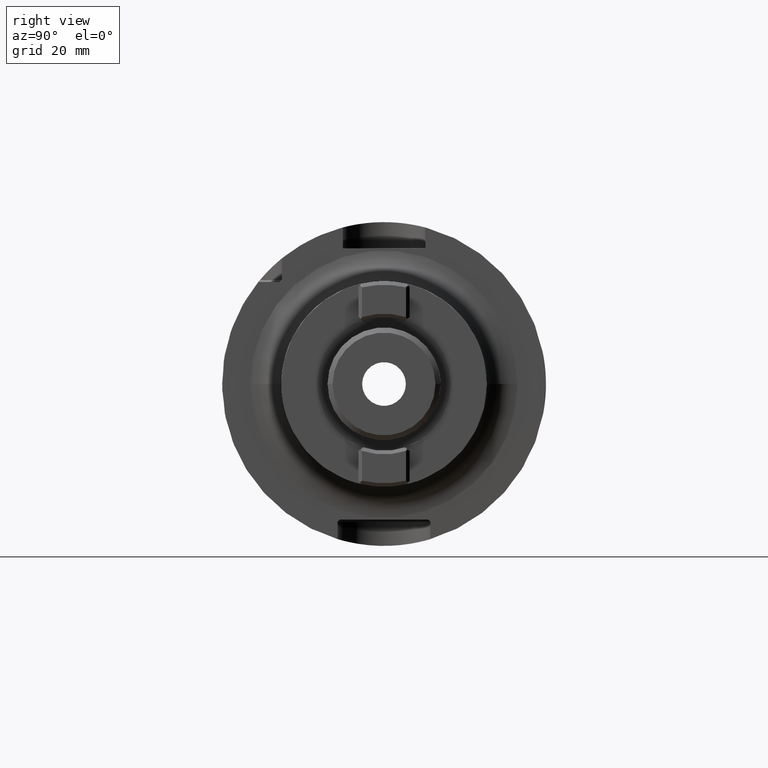
[diagram: clean part render]
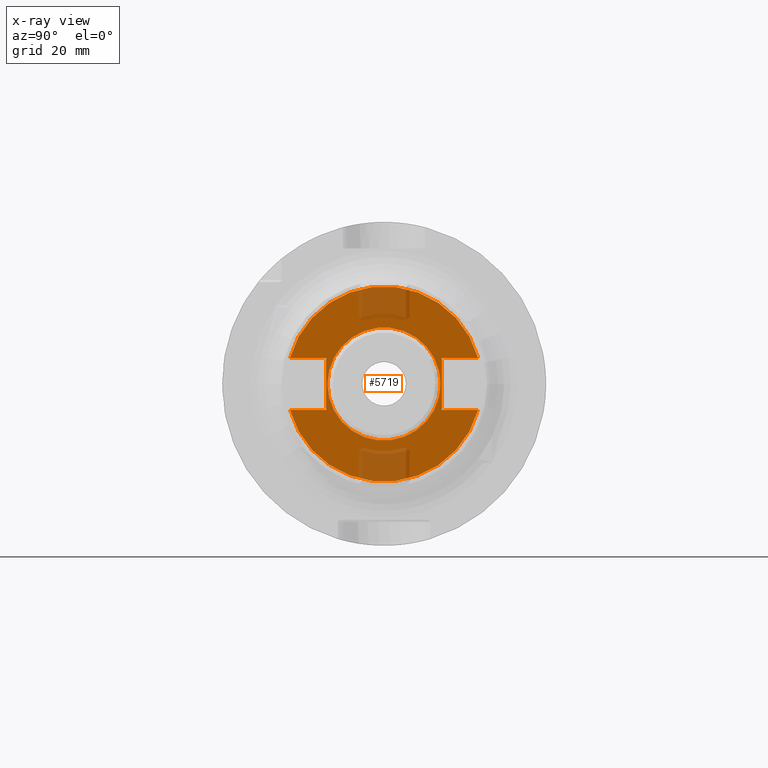
[diagram: x-ray — body ghosted, one internal face saturated and labeled with its STEP entity id]
A machine part, right view, then the same camera in x-ray: the body is ghosted and one INTERNAL B-rep face — a face not visible from any outside direction — is saturated and labeled: STEP entity #5719.
In plain terms, the highlighted planar face has unit normal (1, 0, 0).
Its self-contained STEP definition (entity closure, byte-faithful):
#2061=CARTESIAN_POINT('',(4.8E1,0.E0,0.E0));
#2062=DIRECTION('',(1.E0,0.E0,0.E0));
#2063=DIRECTION('',(0.E0,9.640310968421E-1,2.657894736842E-1));
#2064=AXIS2_PLACEMENT_3D('',#2061,#2062,#2063);
#2078=CARTESIAN_POINT('',(4.8E1,0.E0,0.E0));
#2079=DIRECTION('',(1.E0,0.E0,0.E0));
#2080=DIRECTION('',(0.E0,-9.640310968421E-1,-2.657894736842E-1));
#2081=AXIS2_PLACEMENT_3D('',#2078,#2079,#2080);
#2099=CARTESIAN_POINT('',(4.8E1,0.E0,0.E0));
#2100=DIRECTION('',(1.E0,0.E0,0.E0));
#2101=DIRECTION('',(0.E0,1.E0,0.E0));
#2102=AXIS2_PLACEMENT_3D('',#2099,#2100,#2101);
#2104=CARTESIAN_POINT('',(4.8E1,0.E0,0.E0));
#2105=DIRECTION('',(-1.E0,0.E0,0.E0));
#2106=DIRECTION('',(0.E0,1.E0,0.E0));
#2107=AXIS2_PLACEMENT_3D('',#2104,#2105,#2106);
#2109=DIRECTION('',(0.E0,0.E0,-1.E0));
#2110=VECTOR('',#2109,1.01E1);
#2111=CARTESIAN_POINT('',(4.8E1,-1.125E1,5.05E0));
#2112=LINE('',#2111,#2110);
#2113=DIRECTION('',(0.E0,1.E0,0.E0));
#2114=VECTOR('',#2113,7.066590840001E0);
#2115=CARTESIAN_POINT('',(4.8E1,-1.831659084E1,5.05E0));
#2116=LINE('',#2115,#2114);
#2117=DIRECTION('',(0.E0,-1.E0,0.E0));
#2118=VECTOR('',#2117,7.066590840001E0);
#2119=CARTESIAN_POINT('',(4.8E1,1.831659084E1,5.05E0));
#2120=LINE('',#2119,#2118);
#2121=DIRECTION('',(0.E0,0.E0,-1.E0));
#2122=VECTOR('',#2121,1.01E1);
#2123=CARTESIAN_POINT('',(4.8E1,1.125E1,5.05E0));
#2124=LINE('',#2123,#2122);
#2125=DIRECTION('',(0.E0,-1.E0,0.E0));
#2126=VECTOR('',#2125,7.066590840001E0);
#2127=CARTESIAN_POINT('',(4.8E1,1.831659084E1,-5.05E0));
#2128=LINE('',#2127,#2126);
#2129=DIRECTION('',(0.E0,1.E0,0.E0));
#2130=VECTOR('',#2129,7.066590840001E0);
#2131=CARTESIAN_POINT('',(4.8E1,-1.831659084E1,-5.05E0));
#2132=LINE('',#2131,#2130);
#3374=CARTESIAN_POINT('',(4.8E1,1.1E1,0.E0));
#3375=CARTESIAN_POINT('',(4.8E1,-1.1E1,0.E0));
#3376=VERTEX_POINT('',#3374);
#3377=VERTEX_POINT('',#3375);
#3406=CARTESIAN_POINT('',(4.8E1,1.125E1,5.05E0));
#3407=CARTESIAN_POINT('',(4.8E1,1.125E1,-5.05E0));
#3408=VERTEX_POINT('',#3406);
#3409=VERTEX_POINT('',#3407);
#3410=CARTESIAN_POINT('',(4.8E1,1.831659084E1,5.05E0));
#3411=VERTEX_POINT('',#3410);
#3412=CARTESIAN_POINT('',(4.8E1,1.831659084E1,-5.05E0));
#3413=VERTEX_POINT('',#3412);
#3425=CARTESIAN_POINT('',(4.8E1,-1.125E1,5.05E0));
#3426=VERTEX_POINT('',#3425);
#3427=CARTESIAN_POINT('',(4.8E1,-1.125E1,-5.05E0));
#3428=VERTEX_POINT('',#3427);
#3433=CARTESIAN_POINT('',(4.8E1,-1.831659084E1,5.05E0));
#3434=VERTEX_POINT('',#3433);
#3435=CARTESIAN_POINT('',(4.8E1,-1.831659084E1,-5.05E0));
#3436=VERTEX_POINT('',#3435);
#5696=CARTESIAN_POINT('',(4.8E1,0.E0,0.E0));
#5697=DIRECTION('',(1.E0,0.E0,0.E0));
#5698=DIRECTION('',(0.E0,-1.E0,0.E0));
#5699=AXIS2_PLACEMENT_3D('',#5696,#5697,#5698);
#5700=PLANE('',#5699);
#5701=ORIENTED_EDGE('',*,*,#5629,.F.);
#5702=ORIENTED_EDGE('',*,*,#5646,.F.);
#5703=ORIENTED_EDGE('',*,*,#5660,.F.);
#5704=ORIENTED_EDGE('',*,*,#5685,.T.);
#5706=ORIENTED_EDGE('',*,*,#5705,.T.);
#5708=ORIENTED_EDGE('',*,*,#5707,.F.);
#5709=ORIENTED_EDGE('',*,*,#5671,.F.);
#5710=ORIENTED_EDGE('',*,*,#5612,.T.);
#5711=EDGE_LOOP('',(#5701,#5702,#5703,#5704,#5706,#5708,#5709,#5710));
#5712=FACE_OUTER_BOUND('',#5711,.F.);
#5714=ORIENTED_EDGE('',*,*,#5713,.T.);
#5716=ORIENTED_EDGE('',*,*,#5715,.F.);
#5717=EDGE_LOOP('',(#5714,#5716));
#5718=FACE_BOUND('',#5717,.F.);
#5719=ADVANCED_FACE('',(#5712,#5718),#5700,.T.);
#2065=CIRCLE('',#2064,1.9E1);
#2082=CIRCLE('',#2081,1.9E1);
#2103=CIRCLE('',#2102,1.1E1);
#2108=CIRCLE('',#2107,1.1E1);
#5612=EDGE_CURVE('',#3436,#3428,#2132,.T.);
#5629=EDGE_CURVE('',#3426,#3428,#2112,.T.);
#5646=EDGE_CURVE('',#3434,#3426,#2116,.T.);
#5660=EDGE_CURVE('',#3411,#3434,#2065,.T.);
#5671=EDGE_CURVE('',#3436,#3413,#2082,.T.);
#5685=EDGE_CURVE('',#3411,#3408,#2120,.T.);
#5705=EDGE_CURVE('',#3408,#3409,#2124,.T.);
#5707=EDGE_CURVE('',#3413,#3409,#2128,.T.);
#5713=EDGE_CURVE('',#3376,#3377,#2103,.T.);
#5715=EDGE_CURVE('',#3376,#3377,#2108,.T.);